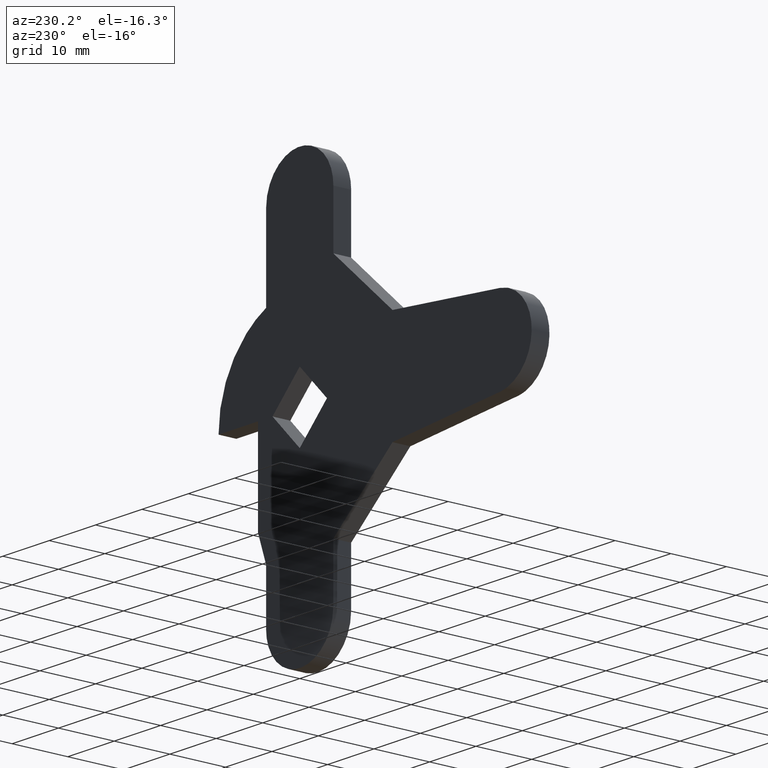
[diagram: clean part render]
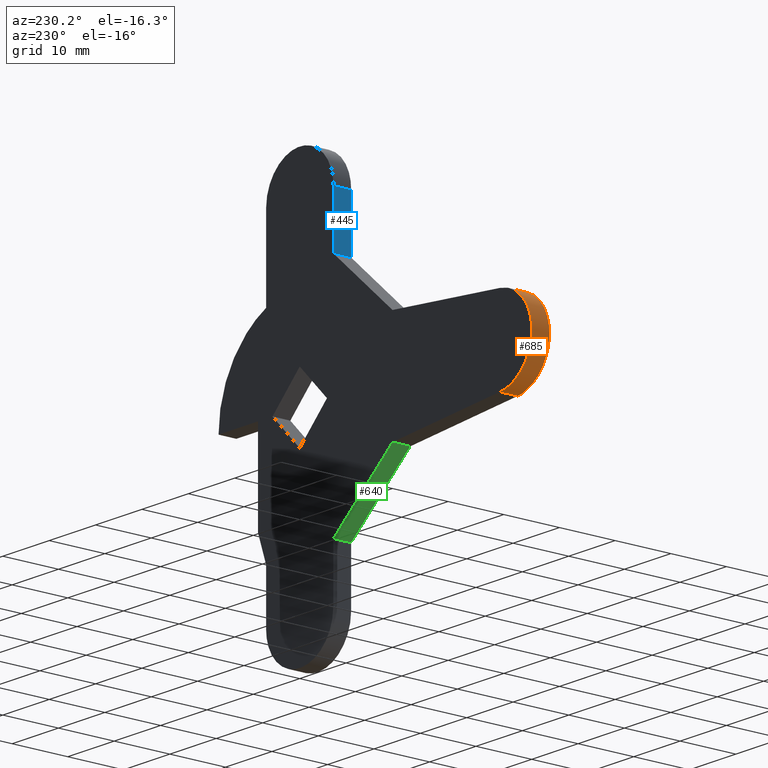
[diagram: same view with three faces highlighted in distinct colors, each labeled with its STEP entity id]
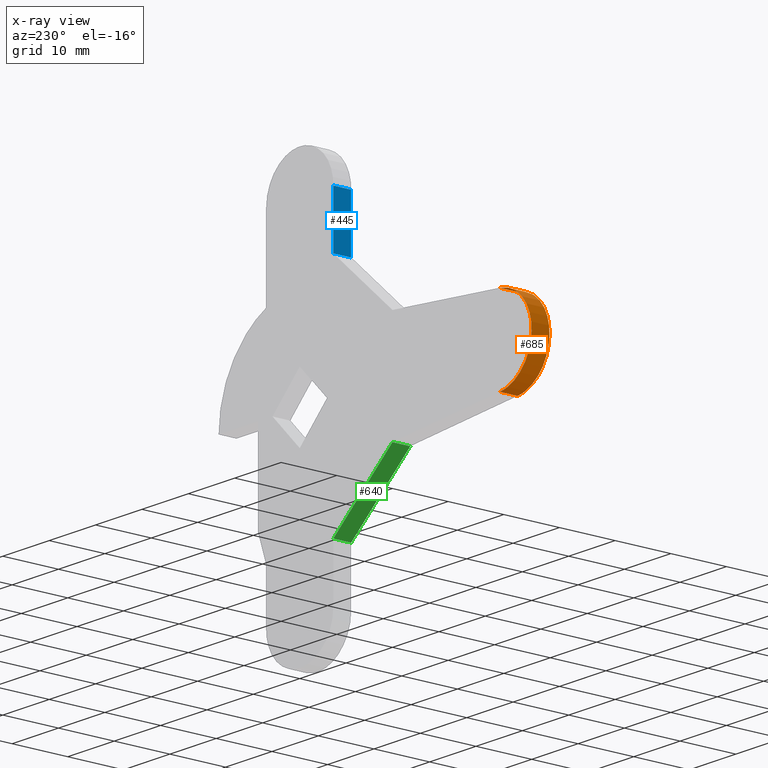
[diagram: x-ray of the same camera — body ghosted, the three highlighted faces saturated]
A machine part, auxiliary view with three faces highlighted in distinct colors.
The next image is the same camera in x-ray (body ghosted, the three faces saturated) — at least one of them is partly hidden behind the body in this view.
Their STEP definitions:

[orange] entity #685 — the highlighted face is a freeform B-spline surface patch.
#163=CARTESIAN_POINT('',(-43.154599674777700,0.0,-7.471400028493091));
#164=VERTEX_POINT('',#163);
#170=CARTESIAN_POINT('',(-43.154600000000002,0.0,7.471399999999900));
#171=VERTEX_POINT('',#170);
#172=CARTESIAN_POINT('',(-43.154600000000002,0.0,7.471399999999907));
#173=CARTESIAN_POINT('',(-50.000041887174163,0.0,6.871663299200882));
#174=CARTESIAN_POINT('',(-50.000041737615973,0.0,-0.000000163234088));
#175=CARTESIAN_POINT('',(-50.000041588057769,0.0,-6.871663625669059));
#176=CARTESIAN_POINT('',(-43.154599674777700,0.0,-7.471400028493090));
#184=(BOUNDED_CURVE()B_SPLINE_CURVE(2,(#172,#173,#174,#175,#176),.UNSPECIFIED.,.F.,.U.)B_SPLINE_CURVE_WITH_KNOTS((3,2,3),(0.0,0.500000000000000,1.0),.UNSPECIFIED.)CURVE()GEOMETRIC_REPRESENTATION_ITEM()RATIONAL_B_SPLINE_CURVE((1.0,0.737318372285746,1.0,0.737318372285746,1.0))REPRESENTATION_ITEM(''));
#185=EDGE_CURVE('',#171,#164,#184,.T.);
#239=CARTESIAN_POINT('',(-43.154600000000002,-3.200000000000000,7.471399999999900));
#240=VERTEX_POINT('',#239);
#246=CARTESIAN_POINT('',(-43.154599674777700,-3.200000000000000,-7.471400028493091));
#247=VERTEX_POINT('',#246);
#248=CARTESIAN_POINT('',(-43.154600000000002,-3.200000000000000,7.471399999999907));
#249=CARTESIAN_POINT('',(-50.000041887174163,-3.200000000000001,6.871663299200882));
#250=CARTESIAN_POINT('',(-50.000041737615973,-3.200000000000000,-0.000000163234088));
#251=CARTESIAN_POINT('',(-50.000041588057769,-3.200000000000001,-6.871663625669059));
#252=CARTESIAN_POINT('',(-43.154599674777700,-3.200000000000000,-7.471400028493090));
#260=(BOUNDED_CURVE()B_SPLINE_CURVE(2,(#248,#249,#250,#251,#252),.UNSPECIFIED.,.F.,.U.)B_SPLINE_CURVE_WITH_KNOTS((3,2,3),(0.0,0.500000000000000,1.0),.UNSPECIFIED.)CURVE()GEOMETRIC_REPRESENTATION_ITEM()RATIONAL_B_SPLINE_CURVE((1.0,0.737318372285746,1.0,0.737318372285746,1.0))REPRESENTATION_ITEM(''));
#261=EDGE_CURVE('',#240,#247,#260,.T.);
#649=CARTESIAN_POINT('',(-43.154599674777700,-3.200000000000000,-7.471400028493091));
#650=CARTESIAN_POINT('',(-43.154599674777700,0.0,-7.471400028493091));
#651=QUASI_UNIFORM_CURVE('',1,(#649,#650),.UNSPECIFIED.,.F.,.U.);
#652=EDGE_CURVE('',#247,#164,#651,.T.);
#657=CARTESIAN_POINT('',(-43.089375638368942,-3.280000000000001,7.476827706472172));
#658=CARTESIAN_POINT('',(-43.089375638368942,0.082000000000000,7.476827706472172));
#659=CARTESIAN_POINT('',(-50.122872823055957,-3.280000000000000,6.922419558153012));
#660=CARTESIAN_POINT('',(-50.122872823055957,0.082000000000000,6.922419558153012));
#661=CARTESIAN_POINT('',(-49.998883488637638,-3.280000000000001,-0.131804544246439));
#662=CARTESIAN_POINT('',(-49.998883488637638,0.082000000000000,-0.131804544246439));
#663=CARTESIAN_POINT('',(-49.874894154219319,-3.280000000000000,-7.186028646645879));
#664=CARTESIAN_POINT('',(-49.874894154219319,0.082000000000000,-7.186028646645879));
#665=CARTESIAN_POINT('',(-42.826258233964040,-3.280000000000001,-7.492920656332871));
#666=CARTESIAN_POINT('',(-42.826258233964040,0.082000000000000,-7.492920656332871));
#674=(BOUNDED_SURFACE()B_SPLINE_SURFACE(1,2,((#657,#659,#661,#663,#665),(#658,#660,#662,#664,#666)),.UNSPECIFIED.,.F.,.F.,.U.)B_SPLINE_SURFACE_WITH_KNOTS((2,2),(3,2,3),(0.0,3.362000000000001),(0.0,11.893015453923431,23.786030907846850),.UNSPECIFIED.)GEOMETRIC_REPRESENTATION_ITEM()RATIONAL_B_SPLINE_SURFACE(((1.0,0.728370969882400,1.0,0.728370969882400,1.0),(1.0,0.728370969882400,1.0,0.728370969882400,1.0)))REPRESENTATION_ITEM('')SURFACE());
#675=ORIENTED_EDGE('',*,*,#185,.T.);
#676=ORIENTED_EDGE('',*,*,#652,.F.);
#677=ORIENTED_EDGE('',*,*,#261,.F.);
#678=CARTESIAN_POINT('',(-43.154600000000002,-3.200000000000000,7.471399999999900));
#679=CARTESIAN_POINT('',(-43.154600000000002,0.0,7.471399999999900));
#680=QUASI_UNIFORM_CURVE('',1,(#678,#679),.UNSPECIFIED.,.F.,.U.);
#681=EDGE_CURVE('',#240,#171,#680,.T.);
#682=ORIENTED_EDGE('',*,*,#681,.T.);
#683=EDGE_LOOP('',(#675,#676,#677,#682));
#684=FACE_OUTER_BOUND('',#683,.T.);
#685=ADVANCED_FACE('',(#684),#674,.T.);

[blue] entity #445 — the highlighted face is a freeform B-spline surface patch.
#49=CARTESIAN_POINT('',(-7.250000000000000,0.0,20.500000000000000));
#50=VERTEX_POINT('',#49);
#58=CARTESIAN_POINT('',(-7.250000000000000,0.0,30.250000000000000));
#59=VERTEX_POINT('',#58);
#60=CARTESIAN_POINT('',(-7.250000000000000,0.0,30.250000000000000));
#61=CARTESIAN_POINT('',(-7.250000000000000,0.0,20.500000000000000));
#62=QUASI_UNIFORM_CURVE('',1,(#60,#61),.UNSPECIFIED.,.F.,.U.);
#63=EDGE_CURVE('',#59,#50,#62,.T.);
#230=CARTESIAN_POINT('',(-7.250000000000000,-3.200000000000000,20.500000000000000));
#231=VERTEX_POINT('',#230);
#351=CARTESIAN_POINT('',(-7.250000000000000,-3.200000000000000,30.250000000000000));
#352=VERTEX_POINT('',#351);
#368=CARTESIAN_POINT('',(-7.250000000000000,-3.200000000000000,30.250000000000000));
#369=CARTESIAN_POINT('',(-7.250000000000000,-3.200000000000000,20.500000000000000));
#370=QUASI_UNIFORM_CURVE('',1,(#368,#369),.UNSPECIFIED.,.F.,.U.);
#371=EDGE_CURVE('',#352,#231,#370,.T.);
#426=CARTESIAN_POINT('',(-7.250000000000000,-3.359840053876400,30.737012481102610));
#427=CARTESIAN_POINT('',(-7.250000000000000,-3.359840053876400,20.012987257382012));
#428=CARTESIAN_POINT('',(-7.250000000000000,0.159840082486629,30.737012481102610));
#429=CARTESIAN_POINT('',(-7.250000000000000,0.159840082486629,20.012987257382012));
#430=B_SPLINE_SURFACE_WITH_KNOTS('',1,1,((#426,#428),(#427,#429)),.UNSPECIFIED.,.F.,.F.,.U.,(2,2),(2,2),(0.0,10.724025223720609),(0.0,3.519680136363030),.UNSPECIFIED.);
#431=ORIENTED_EDGE('',*,*,#63,.T.);
#432=CARTESIAN_POINT('',(-7.250000000000000,-3.200000000000000,20.500000000000000));
#433=CARTESIAN_POINT('',(-7.250000000000000,0.0,20.500000000000000));
#434=QUASI_UNIFORM_CURVE('',1,(#432,#433),.UNSPECIFIED.,.F.,.U.);
#435=EDGE_CURVE('',#231,#50,#434,.T.);
#436=ORIENTED_EDGE('',*,*,#435,.F.);
#437=ORIENTED_EDGE('',*,*,#371,.F.);
#438=CARTESIAN_POINT('',(-7.250000000000000,-3.200000000000000,30.250000000000000));
#439=CARTESIAN_POINT('',(-7.250000000000000,0.0,30.250000000000000));
#440=QUASI_UNIFORM_CURVE('',1,(#438,#439),.UNSPECIFIED.,.F.,.U.);
#441=EDGE_CURVE('',#352,#59,#440,.T.);
#442=ORIENTED_EDGE('',*,*,#441,.T.);
#443=EDGE_LOOP('',(#431,#436,#437,#442));
#444=FACE_OUTER_BOUND('',#443,.T.);
#445=ADVANCED_FACE('',(#444),#430,.F.);

[green] entity #640 — the highlighted face is a freeform B-spline surface patch.
#149=CARTESIAN_POINT('',(-7.250000000000000,0.0,-20.500000000000000));
#150=VERTEX_POINT('',#149);
#156=CARTESIAN_POINT('',(-20.0,0.0,-9.500000000000000));
#157=VERTEX_POINT('',#156);
#158=CARTESIAN_POINT('',(-20.0,0.0,-9.500000000000000));
#159=CARTESIAN_POINT('',(-7.250000000000000,0.0,-20.500000000000000));
#160=QUASI_UNIFORM_CURVE('',1,(#158,#159),.UNSPECIFIED.,.F.,.U.);
#161=EDGE_CURVE('',#157,#150,#160,.T.);
#263=CARTESIAN_POINT('',(-20.0,-3.200000000000000,-9.500000000000000));
#264=VERTEX_POINT('',#263);
#270=CARTESIAN_POINT('',(-7.250000000000000,-3.200000000000000,-20.500000000000000));
#271=VERTEX_POINT('',#270);
#272=CARTESIAN_POINT('',(-20.0,-3.200000000000000,-9.500000000000000));
#273=CARTESIAN_POINT('',(-7.250000000000000,-3.200000000000000,-20.500000000000000));
#274=QUASI_UNIFORM_CURVE('',1,(#272,#273),.UNSPECIFIED.,.F.,.U.);
#275=EDGE_CURVE('',#264,#271,#274,.T.);
#617=CARTESIAN_POINT('',(-7.250000000000000,-3.200000000000000,-20.500000000000000));
#618=CARTESIAN_POINT('',(-7.250000000000000,0.0,-20.500000000000000));
#619=QUASI_UNIFORM_CURVE('',1,(#617,#618),.UNSPECIFIED.,.F.,.U.);
#620=EDGE_CURVE('',#271,#150,#619,.T.);
#625=CARTESIAN_POINT('',(-20.636862475288030,-3.359840053876400,-8.950550021320138));
#626=CARTESIAN_POINT('',(-6.613137182730281,-3.359840053876400,-21.049450273722812));
#627=CARTESIAN_POINT('',(-20.636862475288030,0.159840082486629,-8.950550021320138));
#628=CARTESIAN_POINT('',(-6.613137182730281,0.159840082486629,-21.049450273722812));
#629=B_SPLINE_SURFACE_WITH_KNOTS('',1,1,((#625,#627),(#626,#628)),.UNSPECIFIED.,.F.,.F.,.U.,(2,2),(2,2),(0.0,18.521561985931779),(0.0,3.519680136363029),.UNSPECIFIED.);
#630=ORIENTED_EDGE('',*,*,#161,.T.);
#631=ORIENTED_EDGE('',*,*,#620,.F.);
#632=ORIENTED_EDGE('',*,*,#275,.F.);
#633=CARTESIAN_POINT('',(-20.0,-3.200000000000000,-9.500000000000000));
#634=CARTESIAN_POINT('',(-20.0,0.0,-9.500000000000000));
#635=QUASI_UNIFORM_CURVE('',1,(#633,#634),.UNSPECIFIED.,.F.,.U.);
#636=EDGE_CURVE('',#264,#157,#635,.T.);
#637=ORIENTED_EDGE('',*,*,#636,.T.);
#638=EDGE_LOOP('',(#630,#631,#632,#637));
#639=FACE_OUTER_BOUND('',#638,.T.);
#640=ADVANCED_FACE('',(#639),#629,.F.);